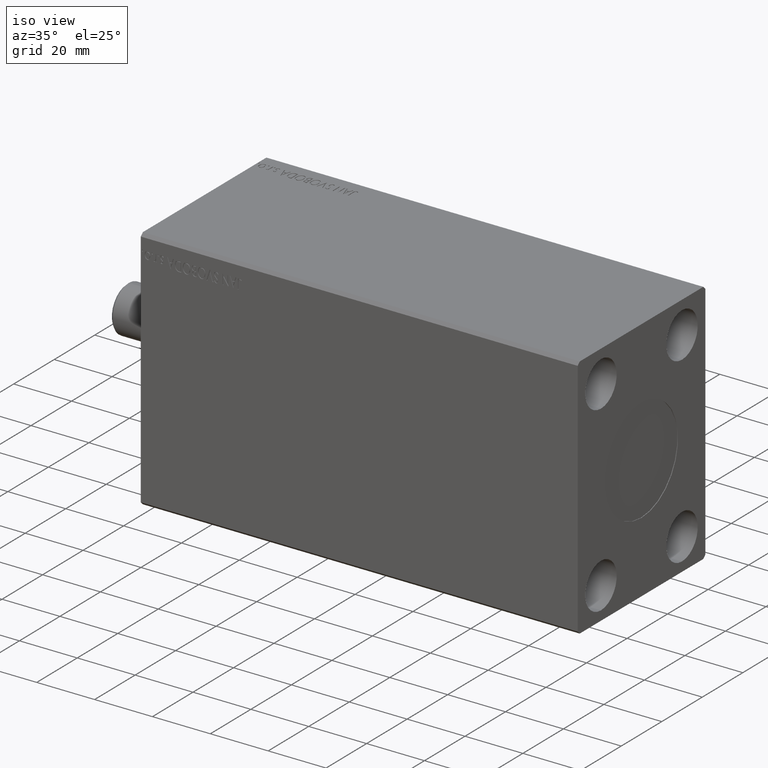
[diagram: clean part render]
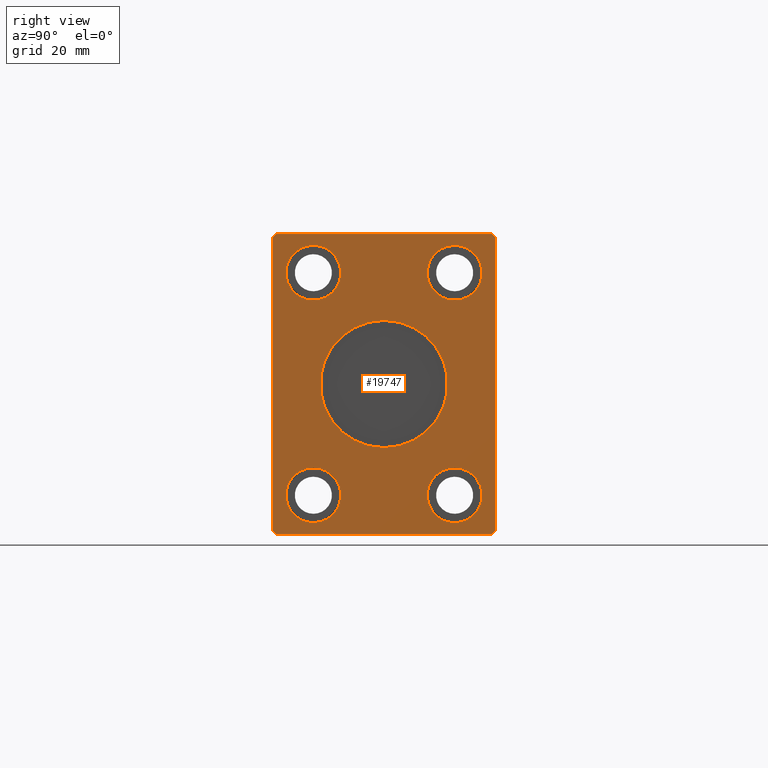
[diagram: tour spotlight — one face highlighted and labeled with its STEP entity id]
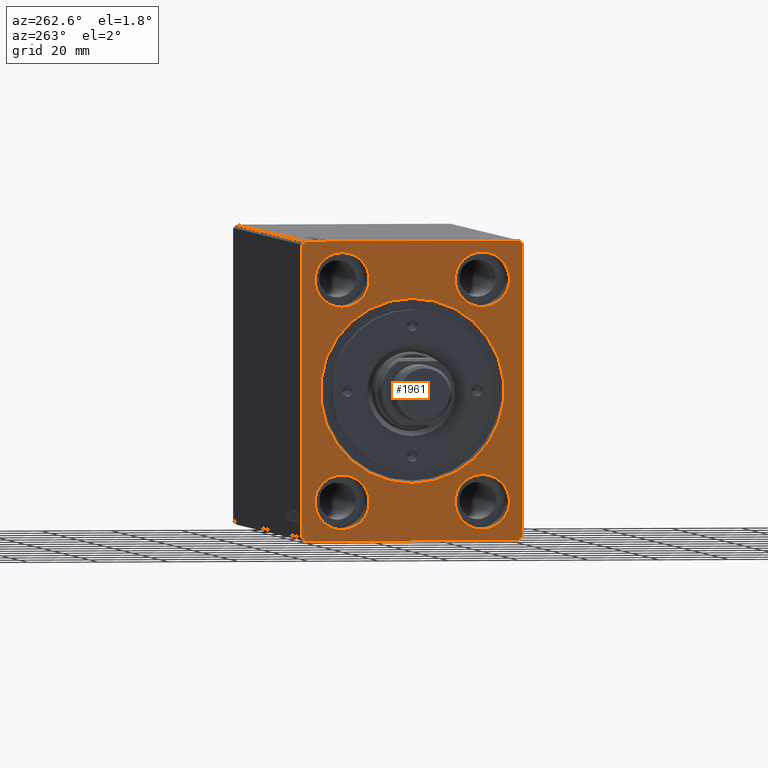
[diagram: tour spotlight — one face highlighted and labeled with its STEP entity id]
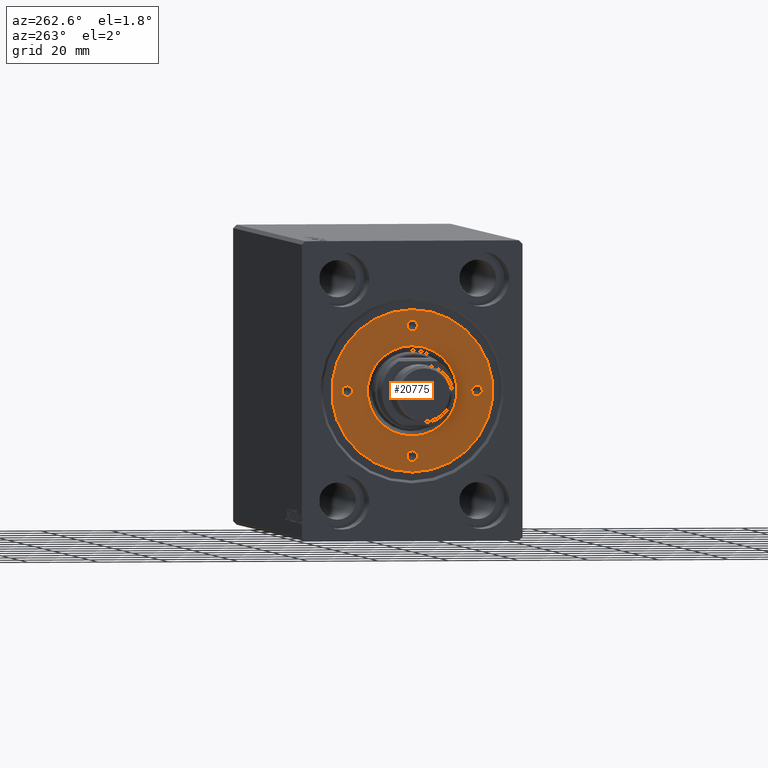
[diagram: tour spotlight — one face highlighted and labeled with its STEP entity id]
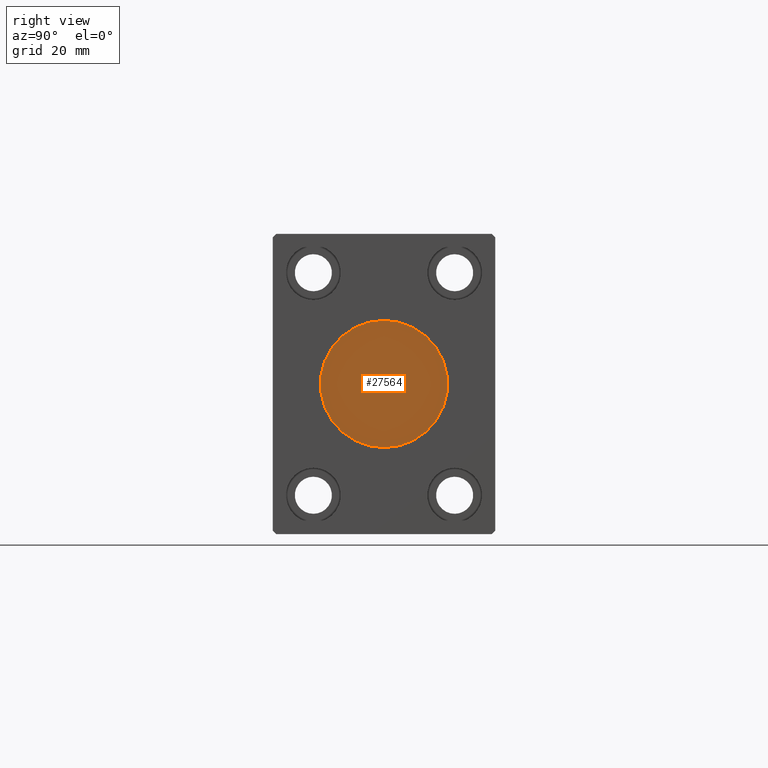
[diagram: tour spotlight — one face highlighted and labeled with its STEP entity id]
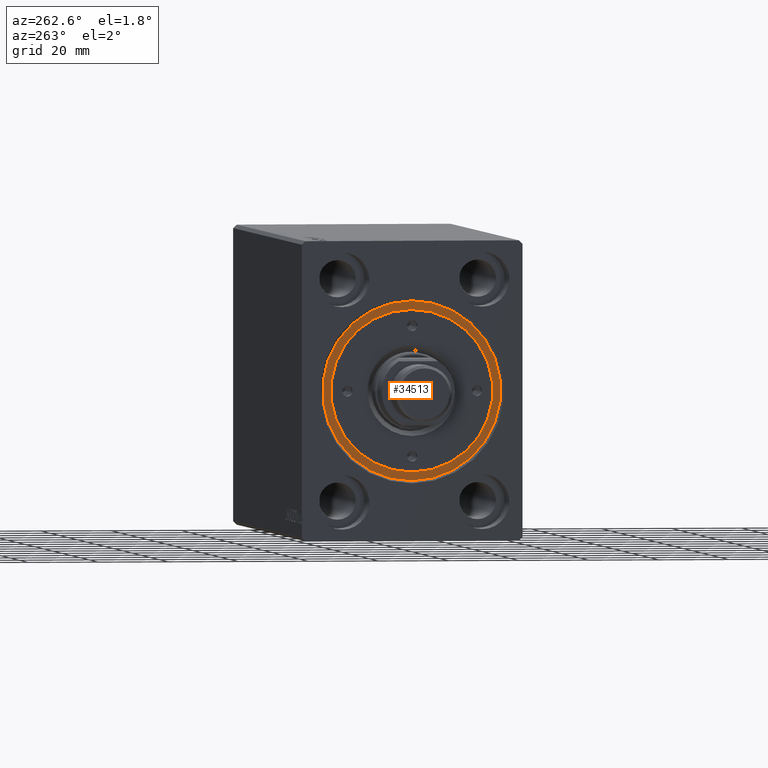
[diagram: tour spotlight — one face highlighted and labeled with its STEP entity id]
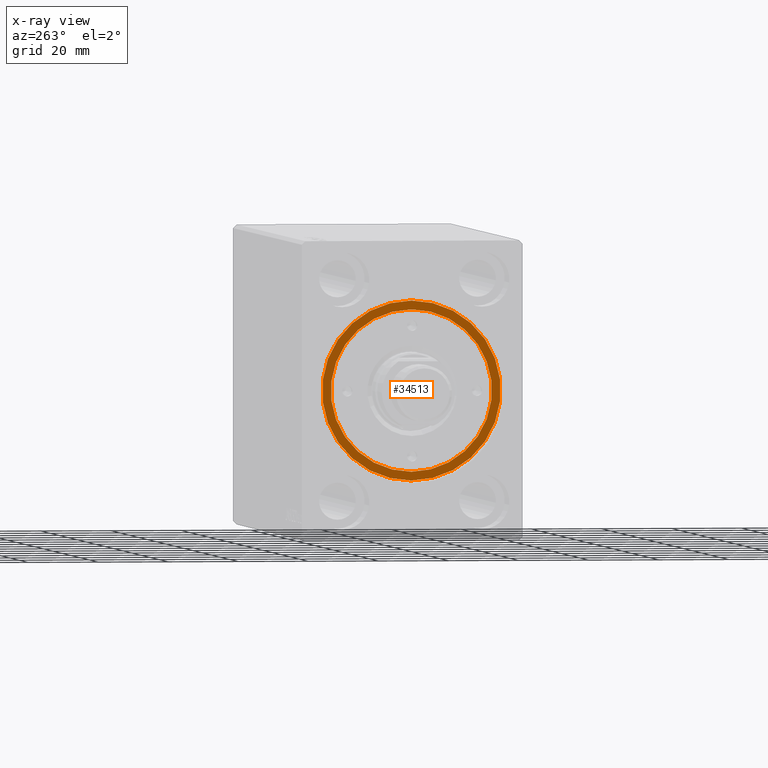
[diagram: x-ray of the same camera — body ghosted, this tour face saturated]
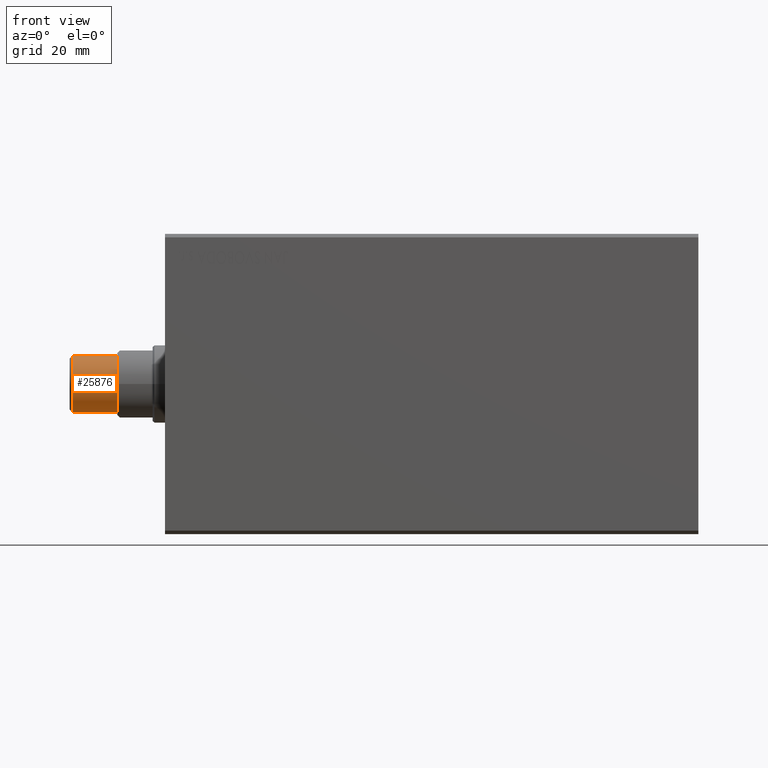
[diagram: tour spotlight — one face highlighted and labeled with its STEP entity id]
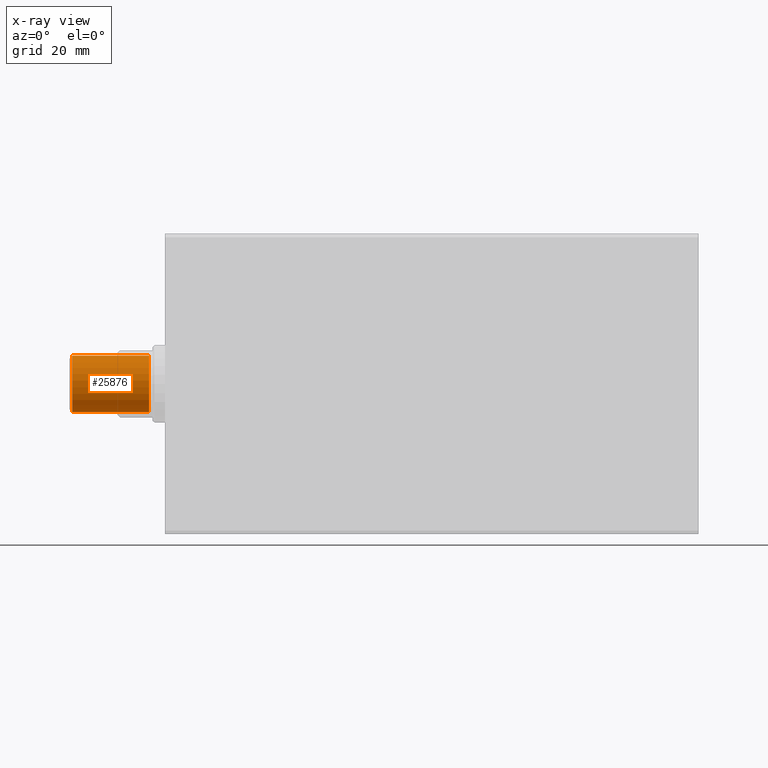
[diagram: x-ray of the same camera — body ghosted, this tour face saturated]
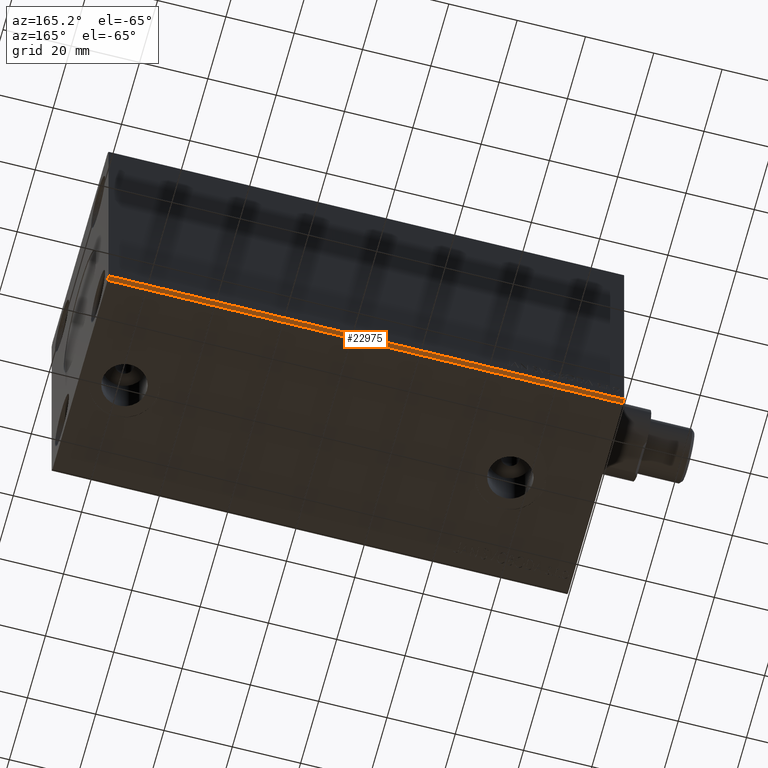
[diagram: tour spotlight — one face highlighted and labeled with its STEP entity id]
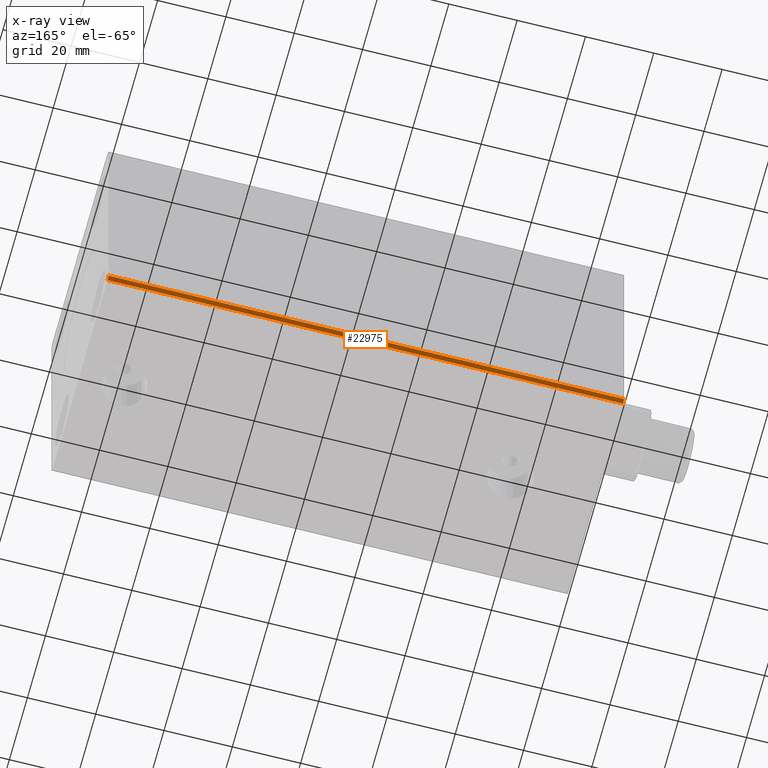
[diagram: x-ray of the same camera — body ghosted, this tour face saturated]
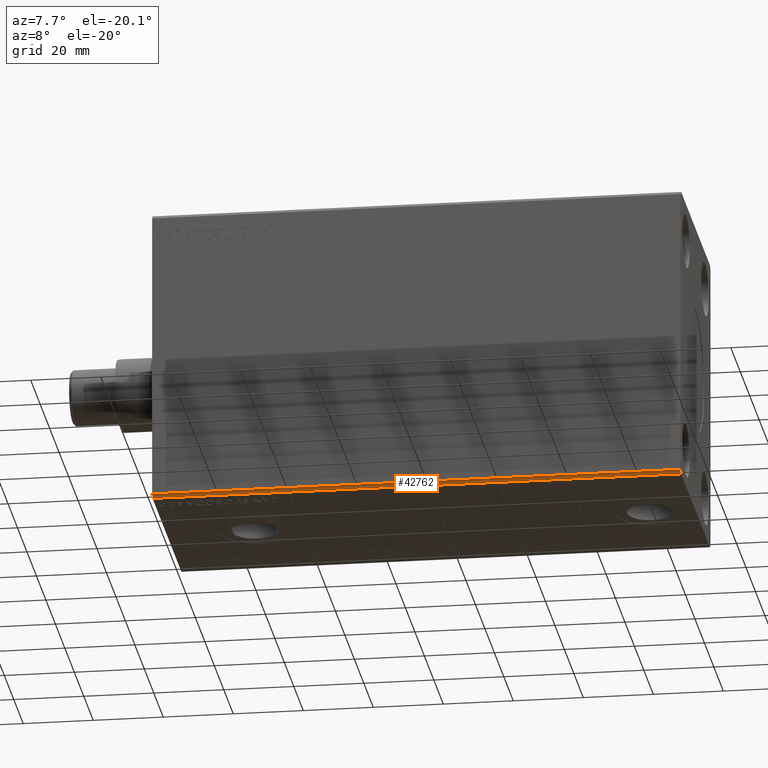
[diagram: tour spotlight — one face highlighted and labeled with its STEP entity id]
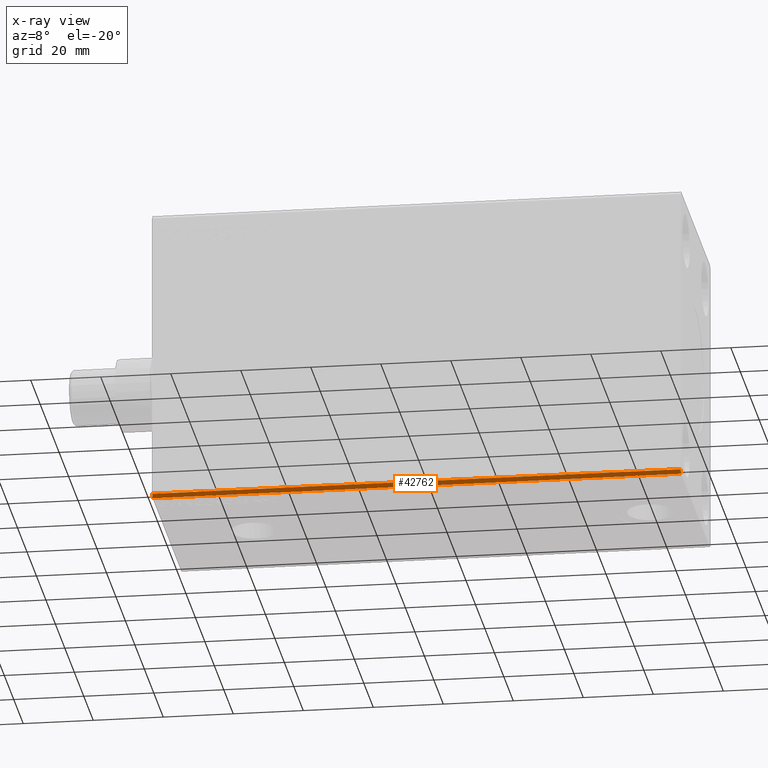
[diagram: x-ray of the same camera — body ghosted, this tour face saturated]
A machine part: a face-by-face anatomy tour. The part has 884 B-rep faces; the first image is the clean iso view, then the 8 largest visible faces are spotlighted one at a time (largest first), each with its STEP entity span.

Face 1 — right view, entity #19747. In plain terms, the highlighted planar face has unit normal (1, 0, 0).
Definition (entity closure, byte-faithful):
#307 = CARTESIAN_POINT ( 'NONE',  ( 151.0000000000000000, -19.99999999999999645, -39.24999999999998579 ) ) ;
#545 = EDGE_LOOP ( 'NONE', ( #42178, #22934 ) ) ;
#1175 = DIRECTION ( 'NONE',  ( -1.000000000000000000, -0.000000000000000000, -0.000000000000000000 ) ) ;
#1454 = VERTEX_POINT ( 'NONE', #42693 ) ;
#2277 = EDGE_CURVE ( 'NONE', #29173, #33342, #12566, .T. ) ;
#3383 = DIRECTION ( 'NONE',  ( 0.000000000000000000, 0.000000000000000000, 1.000000000000000000 ) ) ;
#3436 = AXIS2_PLACEMENT_3D ( 'NONE', #22575, #33822, #26843 ) ;
#4819 = ORIENTED_EDGE ( 'NONE', *, *, #11039, .F. ) ;
#5472 = VERTEX_POINT ( 'NONE', #12970 ) ;
#5478 = DIRECTION ( 'NONE',  ( 0.000000000000000000, -0.7071067811865462405, -0.7071067811865489050 ) ) ;
#5513 = CIRCLE ( 'NONE', #33502, 7.750000000000000000 ) ;
#6202 = VECTOR ( 'NONE', #19805, 1000.000000000000114 ) ;
#6268 = EDGE_CURVE ( 'NONE', #1454, #16040, #36381, .T. ) ;
#6690 = EDGE_CURVE ( 'NONE', #13440, #39242, #5513, .T. ) ;
#7113 = ORIENTED_EDGE ( 'NONE', *, *, #31999, .T. ) ;
#7893 = AXIS2_PLACEMENT_3D ( 'NONE', #40394, #26010, #39514 ) ;
#7985 = VERTEX_POINT ( 'NONE', #16224 ) ;
#8071 = CARTESIAN_POINT ( 'NONE',  ( 151.0000000000000000, -31.50000000000000000, 41.49999999999999289 ) ) ;
#8201 = CARTESIAN_POINT ( 'NONE',  ( 151.0000000000000000, 20.00000000000000355, -23.74999999999998579 ) ) ;
#8781 = VERTEX_POINT ( 'NONE', #32297 ) ;
#8897 = PLANE ( 'NONE',  #7893 ) ;
#9022 = CARTESIAN_POINT ( 'NONE',  ( 151.0000000000000000, 31.50000000000001421, 41.49999999999999289 ) ) ;
#9113 = DIRECTION ( 'NONE',  ( 1.000000000000000000, 0.000000000000000000, 0.000000000000000000 ) ) ;
#10394 = VERTEX_POINT ( 'NONE', #17077 ) ;
#10579 = EDGE_CURVE ( 'NONE', #8781, #7985, #34349, .T. ) ;
#10686 = DIRECTION ( 'NONE',  ( 1.000000000000000000, -0.000000000000000000, -0.000000000000000000 ) ) ;
#10689 = DIRECTION ( 'NONE',  ( 0.000000000000000000, 0.7071067811865462405, 0.7071067811865489050 ) ) ;
#11039 = EDGE_CURVE ( 'NONE', #7985, #8781, #43659, .T. ) ;
#11616 = FACE_OUTER_BOUND ( 'NONE', #11771, .T. ) ;
#11771 = EDGE_LOOP ( 'NONE', ( #23279, #33683, #27114, #23600, #28662, #33434, #15167, #12579 ) ) ;
#12056 = CARTESIAN_POINT ( 'NONE',  ( 151.0000000000000000, -19.99999999999999645, 39.25000000000001421 ) ) ;
#12231 = CARTESIAN_POINT ( 'NONE',  ( 151.0000000000000000, -31.50000000000000000, -41.50000000000000711 ) ) ;
#12566 = CIRCLE ( 'NONE', #37725, 7.750000000000000000 ) ;
#12579 = ORIENTED_EDGE ( 'NONE', *, *, #29443, .T. ) ;
#12727 = EDGE_CURVE ( 'NONE', #42251, #5472, #40171, .T. ) ;
#12874 = EDGE_LOOP ( 'NONE', ( #30965, #20025 ) ) ;
#12970 = CARTESIAN_POINT ( 'NONE',  ( 151.0000000000000000, -19.99999999999999645, 23.75000000000001421 ) ) ;
#13053 = CARTESIAN_POINT ( 'NONE',  ( 151.0000000000000000, -30.50000000000000711, -42.50000000000000711 ) ) ;
#13245 = DIRECTION ( 'NONE',  ( 0.000000000000000000, 0.000000000000000000, -1.000000000000000000 ) ) ;
#13253 = EDGE_CURVE ( 'NONE', #33342, #29173, #32962, .T. ) ;
#13328 = CARTESIAN_POINT ( 'NONE',  ( 151.0000000000000000, -30.50000000000000355, 42.49999999999999289 ) ) ;
#13440 = VERTEX_POINT ( 'NONE', #27121 ) ;
#13499 = AXIS2_PLACEMENT_3D ( 'NONE', #24568, #14214, #38076 ) ;
#13663 = CARTESIAN_POINT ( 'NONE',  ( 151.0000000000000000, 30.50000000000001421, 42.49999999999999289 ) ) ;
#14036 = VERTEX_POINT ( 'NONE', #14799 ) ;
#14214 = DIRECTION ( 'NONE',  ( 1.000000000000000000, 0.000000000000000000, 0.000000000000000000 ) ) ;
#14229 = EDGE_CURVE ( 'NONE', #42639, #41946, #35667, .T. ) ;
#14376 = DIRECTION ( 'NONE',  ( 0.000000000000000000, 0.000000000000000000, 1.000000000000000000 ) ) ;
#14799 = CARTESIAN_POINT ( 'NONE',  ( 151.0000000000000000, -30.50000000000000355, 42.49999999999999289 ) ) ;
#15001 = FACE_BOUND ( 'NONE', #21220, .T. ) ;
#15079 = VECTOR ( 'NONE', #18191, 1000.000000000000000 ) ;
#15167 = ORIENTED_EDGE ( 'NONE', *, *, #23132, .T. ) ;
#15172 = AXIS2_PLACEMENT_3D ( 'NONE', #33500, #33957, #13245 ) ;
#15268 = LINE ( 'NONE', #42702, #15079 ) ;
#15529 = CARTESIAN_POINT ( 'NONE',  ( 151.0000000000000000, 20.00000000000000355, 39.25000000000001421 ) ) ;
#15633 = DIRECTION ( 'NONE',  ( 0.000000000000000000, 0.7071067811865451302, -0.7071067811865500152 ) ) ;
#16040 = VERTEX_POINT ( 'NONE', #8201 ) ;
#16224 = CARTESIAN_POINT ( 'NONE',  ( 151.0000000000000000, 0.000000000000000000, -18.00000000000000000 ) ) ;
#16322 = DIRECTION ( 'NONE',  ( 0.000000000000000000, 0.000000000000000000, -1.000000000000000000 ) ) ;
#16419 = AXIS2_PLACEMENT_3D ( 'NONE', #24744, #38470, #3383 ) ;
#17077 = CARTESIAN_POINT ( 'NONE',  ( 151.0000000000000000, 31.50000000000001421, 41.49999999999999289 ) ) ;
#17274 = VECTOR ( 'NONE', #5478, 999.9999999999998863 ) ;
#18191 = DIRECTION ( 'NONE',  ( 0.000000000000000000, 0.000000000000000000, -1.000000000000000000 ) ) ;
#18621 = VECTOR ( 'NONE', #15633, 1000.000000000000114 ) ;
#19020 = EDGE_CURVE ( 'NONE', #33967, #14036, #44476, .T. ) ;
#19161 = AXIS2_PLACEMENT_3D ( 'NONE', #32445, #1175, #22313 ) ;
#19261 = CIRCLE ( 'NONE', #3436, 7.750000000000000000 ) ;
#19463 = DIRECTION ( 'NONE',  ( 0.000000000000000000, 0.000000000000000000, -1.000000000000000000 ) ) ;
#19642 = LINE ( 'NONE', #13328, #17274 ) ;
#19747 = ADVANCED_FACE ( 'NONE', ( #32531, #15001, #28723, #11616, #25344, #39944 ), #8897, .T. ) ;
#19805 = DIRECTION ( 'NONE',  ( 0.000000000000000000, -0.7071067811865474617, 0.7071067811865474617 ) ) ;
#19833 = EDGE_LOOP ( 'NONE', ( #23950, #7113 ) ) ;
#20025 = ORIENTED_EDGE ( 'NONE', *, *, #40218, .F. ) ;
#20082 = VECTOR ( 'NONE', #22187, 1000.000000000000000 ) ;
#20155 = DIRECTION ( 'NONE',  ( 1.000000000000000000, -0.000000000000000000, -0.000000000000000000 ) ) ;
#20902 = ORIENTED_EDGE ( 'NONE', *, *, #10579, .F. ) ;
#21220 = EDGE_LOOP ( 'NONE', ( #32914, #23609 ) ) ;
#21490 = CARTESIAN_POINT ( 'NONE',  ( 151.0000000000000000, 30.50000000000001776, -42.50000000000000711 ) ) ;
#22187 = DIRECTION ( 'NONE',  ( 0.000000000000000000, -1.000000000000000000, 0.000000000000000000 ) ) ;
#22313 = DIRECTION ( 'NONE',  ( 0.000000000000000000, 0.000000000000000000, 1.000000000000000000 ) ) ;
#22575 = CARTESIAN_POINT ( 'NONE',  ( 151.0000000000000000, 20.00000000000000355, -31.49999999999998579 ) ) ;
#22624 = CARTESIAN_POINT ( 'NONE',  ( 151.0000000000000000, 31.50000000000001421, -41.50000000000000711 ) ) ;
#22682 = EDGE_CURVE ( 'NONE', #10394, #33967, #39852, .T. ) ;
#22934 = ORIENTED_EDGE ( 'NONE', *, *, #13253, .F. ) ;
#23132 = EDGE_CURVE ( 'NONE', #41646, #31641, #38369, .T. ) ;
#23279 = ORIENTED_EDGE ( 'NONE', *, *, #22682, .T. ) ;
#23520 = CARTESIAN_POINT ( 'NONE',  ( 151.0000000000000000, -19.99999999999999645, -31.49999999999998579 ) ) ;
#23600 = ORIENTED_EDGE ( 'NONE', *, *, #37307, .T. ) ;
#23609 = ORIENTED_EDGE ( 'NONE', *, *, #12727, .T. ) ;
#23950 = ORIENTED_EDGE ( 'NONE', *, *, #6268, .T. ) ;
#24568 = CARTESIAN_POINT ( 'NONE',  ( 151.0000000000000000, 0.000000000000000000, 0.000000000000000000 ) ) ;
#24643 = DIRECTION ( 'NONE',  ( 0.000000000000000000, 0.000000000000000000, -1.000000000000000000 ) ) ;
#24744 = CARTESIAN_POINT ( 'NONE',  ( 151.0000000000000000, -19.99999999999999645, 31.50000000000001421 ) ) ;
#25289 = EDGE_LOOP ( 'NONE', ( #4819, #20902 ) ) ;
#25344 = FACE_BOUND ( 'NONE', #545, .T. ) ;
#26010 = DIRECTION ( 'NONE',  ( 1.000000000000000000, 0.000000000000000000, 0.000000000000000000 ) ) ;
#26255 = EDGE_CURVE ( 'NONE', #41946, #41646, #40718, .T. ) ;
#26843 = DIRECTION ( 'NONE',  ( 0.000000000000000000, 0.000000000000000000, 1.000000000000000000 ) ) ;
#26915 = DIRECTION ( 'NONE',  ( 0.000000000000000000, 0.000000000000000000, -1.000000000000000000 ) ) ;
#27114 = ORIENTED_EDGE ( 'NONE', *, *, #43393, .T. ) ;
#27121 = CARTESIAN_POINT ( 'NONE',  ( 151.0000000000000000, 20.00000000000000355, 23.75000000000001421 ) ) ;
#27148 = AXIS2_PLACEMENT_3D ( 'NONE', #42713, #9113, #19463 ) ;
#27367 = DIRECTION ( 'NONE',  ( 1.000000000000000000, -0.000000000000000000, -0.000000000000000000 ) ) ;
#27532 = CARTESIAN_POINT ( 'NONE',  ( 151.0000000000000000, -19.99999999999999645, 31.50000000000001421 ) ) ;
#27868 = LINE ( 'NONE', #31021, #32124 ) ;
#28662 = ORIENTED_EDGE ( 'NONE', *, *, #14229, .T. ) ;
#28723 = FACE_BOUND ( 'NONE', #19833, .T. ) ;
#29173 = VERTEX_POINT ( 'NONE', #307 ) ;
#29443 = EDGE_CURVE ( 'NONE', #31641, #10394, #27868, .T. ) ;
#29990 = EDGE_CURVE ( 'NONE', #5472, #42251, #43607, .T. ) ;
#30308 = CARTESIAN_POINT ( 'NONE',  ( 151.0000000000000000, -30.50000000000000711, -42.50000000000000711 ) ) ;
#30965 = ORIENTED_EDGE ( 'NONE', *, *, #6690, .F. ) ;
#31021 = CARTESIAN_POINT ( 'NONE',  ( 151.0000000000000000, 31.50000000000001421, -41.50000000000000711 ) ) ;
#31641 = VERTEX_POINT ( 'NONE', #22624 ) ;
#31999 = EDGE_CURVE ( 'NONE', #16040, #1454, #19261, .T. ) ;
#32124 = VECTOR ( 'NONE', #14376, 1000.000000000000000 ) ;
#32297 = CARTESIAN_POINT ( 'NONE',  ( 151.0000000000000000, 2.204364238465235428E-15, 18.00000000000000000 ) ) ;
#32445 = CARTESIAN_POINT ( 'NONE',  ( 151.0000000000000000, 20.00000000000000355, -31.49999999999998579 ) ) ;
#32531 = FACE_BOUND ( 'NONE', #25289, .T. ) ;
#32914 = ORIENTED_EDGE ( 'NONE', *, *, #29990, .T. ) ;
#32962 = CIRCLE ( 'NONE', #35843, 7.750000000000000000 ) ;
#33342 = VERTEX_POINT ( 'NONE', #39459 ) ;
#33434 = ORIENTED_EDGE ( 'NONE', *, *, #26255, .T. ) ;
#33467 = CARTESIAN_POINT ( 'NONE',  ( 151.0000000000000000, 30.50000000000001421, 42.49999999999999289 ) ) ;
#33500 = CARTESIAN_POINT ( 'NONE',  ( 151.0000000000000000, 20.00000000000000355, 31.50000000000001421 ) ) ;
#33502 = AXIS2_PLACEMENT_3D ( 'NONE', #41521, #10686, #24643 ) ;
#33515 = DIRECTION ( 'NONE',  ( 0.000000000000000000, 1.000000000000000000, 0.000000000000000000 ) ) ;
#33683 = ORIENTED_EDGE ( 'NONE', *, *, #19020, .T. ) ;
#33822 = DIRECTION ( 'NONE',  ( -1.000000000000000000, -0.000000000000000000, -0.000000000000000000 ) ) ;
#33957 = DIRECTION ( 'NONE',  ( 1.000000000000000000, -0.000000000000000000, -0.000000000000000000 ) ) ;
#33967 = VERTEX_POINT ( 'NONE', #33467 ) ;
#34349 = CIRCLE ( 'NONE', #27148, 18.00000000000000000 ) ;
#35667 = LINE ( 'NONE', #39489, #18621 ) ;
#35843 = AXIS2_PLACEMENT_3D ( 'NONE', #23520, #20155, #16322 ) ;
#36381 = CIRCLE ( 'NONE', #19161, 7.750000000000000000 ) ;
#36617 = CIRCLE ( 'NONE', #15172, 7.750000000000000000 ) ;
#36834 = CARTESIAN_POINT ( 'NONE',  ( 151.0000000000000000, -19.99999999999999645, -31.49999999999998579 ) ) ;
#36997 = DIRECTION ( 'NONE',  ( 0.000000000000000000, 0.000000000000000000, 1.000000000000000000 ) ) ;
#37307 = EDGE_CURVE ( 'NONE', #40378, #42639, #15268, .T. ) ;
#37725 = AXIS2_PLACEMENT_3D ( 'NONE', #36834, #27367, #26915 ) ;
#38076 = DIRECTION ( 'NONE',  ( 0.000000000000000000, 0.000000000000000000, -1.000000000000000000 ) ) ;
#38369 = LINE ( 'NONE', #21490, #39258 ) ;
#38470 = DIRECTION ( 'NONE',  ( -1.000000000000000000, -0.000000000000000000, -0.000000000000000000 ) ) ;
#38486 = VECTOR ( 'NONE', #33515, 1000.000000000000000 ) ;
#38578 = AXIS2_PLACEMENT_3D ( 'NONE', #27532, #41261, #36997 ) ;
#39242 = VERTEX_POINT ( 'NONE', #15529 ) ;
#39258 = VECTOR ( 'NONE', #10689, 999.9999999999998863 ) ;
#39459 = CARTESIAN_POINT ( 'NONE',  ( 151.0000000000000000, -19.99999999999999645, -23.74999999999998579 ) ) ;
#39489 = CARTESIAN_POINT ( 'NONE',  ( 151.0000000000000000, -31.50000000000000000, -41.50000000000000711 ) ) ;
#39514 = DIRECTION ( 'NONE',  ( 0.000000000000000000, 0.000000000000000000, -1.000000000000000000 ) ) ;
#39852 = LINE ( 'NONE', #9022, #6202 ) ;
#39944 = FACE_BOUND ( 'NONE', #12874, .T. ) ;
#40171 = CIRCLE ( 'NONE', #16419, 7.750000000000000000 ) ;
#40218 = EDGE_CURVE ( 'NONE', #39242, #13440, #36617, .T. ) ;
#40378 = VERTEX_POINT ( 'NONE', #8071 ) ;
#40394 = CARTESIAN_POINT ( 'NONE',  ( 151.0000000000000000, 0.000000000000000000, 0.000000000000000000 ) ) ;
#40718 = LINE ( 'NONE', #13053, #38486 ) ;
#41169 = CARTESIAN_POINT ( 'NONE',  ( 151.0000000000000000, 30.50000000000001776, -42.50000000000000711 ) ) ;
#41261 = DIRECTION ( 'NONE',  ( -1.000000000000000000, -0.000000000000000000, -0.000000000000000000 ) ) ;
#41521 = CARTESIAN_POINT ( 'NONE',  ( 151.0000000000000000, 20.00000000000000355, 31.50000000000001421 ) ) ;
#41646 = VERTEX_POINT ( 'NONE', #41169 ) ;
#41946 = VERTEX_POINT ( 'NONE', #30308 ) ;
#42178 = ORIENTED_EDGE ( 'NONE', *, *, #2277, .F. ) ;
#42251 = VERTEX_POINT ( 'NONE', #12056 ) ;
#42639 = VERTEX_POINT ( 'NONE', #12231 ) ;
#42693 = CARTESIAN_POINT ( 'NONE',  ( 151.0000000000000000, 20.00000000000000355, -39.24999999999998579 ) ) ;
#42702 = CARTESIAN_POINT ( 'NONE',  ( 151.0000000000000000, -31.50000000000000000, 41.49999999999999289 ) ) ;
#42713 = CARTESIAN_POINT ( 'NONE',  ( 151.0000000000000000, 0.000000000000000000, 0.000000000000000000 ) ) ;
#43393 = EDGE_CURVE ( 'NONE', #14036, #40378, #19642, .T. ) ;
#43607 = CIRCLE ( 'NONE', #38578, 7.750000000000000000 ) ;
#43659 = CIRCLE ( 'NONE', #13499, 18.00000000000000000 ) ;
#44476 = LINE ( 'NONE', #13663, #20082 ) ;

Face 2 — auxiliary view, entity #1961. In plain terms, the highlighted planar face has unit normal (1, 0, 0).
Definition (entity closure, byte-faithful):
#18 = CARTESIAN_POINT ( 'NONE',  ( 0.000000000000000000, 30.50000000000001776, -42.50000000000000711 ) ) ;
#594 = LINE ( 'NONE', #14318, #18474 ) ;
#1258 = DIRECTION ( 'NONE',  ( 0.000000000000000000, 1.000000000000000000, 0.000000000000000000 ) ) ;
#1271 = EDGE_CURVE ( 'NONE', #6618, #31194, #24621, .T. ) ;
#1553 = VERTEX_POINT ( 'NONE', #23532 ) ;
#1961 = ADVANCED_FACE ( 'NONE', ( #11487, #8117, #21834, #11041, #24764, #7669 ), #31746, .F. ) ;
#2382 = VERTEX_POINT ( 'NONE', #11152 ) ;
#2415 = DIRECTION ( 'NONE',  ( 0.000000000000000000, -0.7071067811865462405, -0.7071067811865489050 ) ) ;
#2604 = CARTESIAN_POINT ( 'NONE',  ( 0.000000000000000000, -19.99999999999999645, 31.50000000000001421 ) ) ;
#2616 = CIRCLE ( 'NONE', #44297, 7.750000000000000000 ) ;
#2662 = DIRECTION ( 'NONE',  ( 0.000000000000000000, 0.000000000000000000, 1.000000000000000000 ) ) ;
#3050 = LINE ( 'NONE', #9360, #5736 ) ;
#3592 = CIRCLE ( 'NONE', #18689, 7.750000000000000000 ) ;
#3769 = EDGE_LOOP ( 'NONE', ( #9540, #4269 ) ) ;
#3835 = CARTESIAN_POINT ( 'NONE',  ( 0.000000000000000000, -30.50000000000000355, 42.49999999999999289 ) ) ;
#3890 = ORIENTED_EDGE ( 'NONE', *, *, #21594, .F. ) ;
#3933 = ORIENTED_EDGE ( 'NONE', *, *, #6531, .T. ) ;
#4269 = ORIENTED_EDGE ( 'NONE', *, *, #28581, .T. ) ;
#4376 = CARTESIAN_POINT ( 'NONE',  ( 0.000000000000000000, 31.50000000000001421, 41.49999999999999289 ) ) ;
#4449 = VERTEX_POINT ( 'NONE', #18 ) ;
#4739 = DIRECTION ( 'NONE',  ( 1.000000000000000000, 0.000000000000000000, 0.000000000000000000 ) ) ;
#5571 = CIRCLE ( 'NONE', #39337, 7.750000000000000000 ) ;
#5736 = VECTOR ( 'NONE', #6203, 1000.000000000000000 ) ;
#5937 = EDGE_CURVE ( 'NONE', #43869, #6297, #22992, .T. ) ;
#6203 = DIRECTION ( 'NONE',  ( 0.000000000000000000, -1.000000000000000000, 0.000000000000000000 ) ) ;
#6297 = VERTEX_POINT ( 'NONE', #41913 ) ;
#6531 = EDGE_CURVE ( 'NONE', #36466, #2382, #2616, .T. ) ;
#6618 = VERTEX_POINT ( 'NONE', #40410 ) ;
#6941 = ORIENTED_EDGE ( 'NONE', *, *, #33157, .T. ) ;
#7103 = CIRCLE ( 'NONE', #20738, 26.20000000000002771 ) ;
#7107 = CARTESIAN_POINT ( 'NONE',  ( 0.000000000000000000, 31.50000000000001421, -41.50000000000000711 ) ) ;
#7292 = DIRECTION ( 'NONE',  ( 1.000000000000000000, -0.000000000000000000, -0.000000000000000000 ) ) ;
#7466 = ORIENTED_EDGE ( 'NONE', *, *, #15786, .F. ) ;
#7578 = ORIENTED_EDGE ( 'NONE', *, *, #8919, .T. ) ;
#7669 = FACE_BOUND ( 'NONE', #8182, .T. ) ;
#8117 = FACE_BOUND ( 'NONE', #25718, .T. ) ;
#8182 = EDGE_LOOP ( 'NONE', ( #30033, #7578 ) ) ;
#8501 = CARTESIAN_POINT ( 'NONE',  ( 0.000000000000000000, 30.50000000000001776, -42.50000000000000711 ) ) ;
#8562 = CIRCLE ( 'NONE', #12150, 7.750000000000000000 ) ;
#8919 = EDGE_CURVE ( 'NONE', #15089, #39497, #5571, .T. ) ;
#9271 = DIRECTION ( 'NONE',  ( 0.000000000000000000, 0.7071067811865451302, -0.7071067811865500152 ) ) ;
#9360 = CARTESIAN_POINT ( 'NONE',  ( 0.000000000000000000, 30.50000000000001421, 42.49999999999999289 ) ) ;
#9540 = ORIENTED_EDGE ( 'NONE', *, *, #34731, .T. ) ;
#9579 = DIRECTION ( 'NONE',  ( 0.000000000000000000, 0.000000000000000000, 1.000000000000000000 ) ) ;
#9635 = CARTESIAN_POINT ( 'NONE',  ( 0.000000000000000000, 20.00000000000000355, -31.49999999999998579 ) ) ;
#9638 = ORIENTED_EDGE ( 'NONE', *, *, #15879, .F. ) ;
#9705 = ORIENTED_EDGE ( 'NONE', *, *, #24893, .F. ) ;
#10811 = DIRECTION ( 'NONE',  ( -1.000000000000000000, 0.000000000000000000, 0.000000000000000000 ) ) ;
#11041 = FACE_OUTER_BOUND ( 'NONE', #32885, .T. ) ;
#11152 = CARTESIAN_POINT ( 'NONE',  ( 0.000000000000000000, -19.99999999999999645, -23.74999999999998579 ) ) ;
#11248 = AXIS2_PLACEMENT_3D ( 'NONE', #28687, #15850, #21716 ) ;
#11487 = FACE_BOUND ( 'NONE', #38777, .T. ) ;
#11502 = DIRECTION ( 'NONE',  ( -1.000000000000000000, 0.000000000000000000, 0.000000000000000000 ) ) ;
#11693 = DIRECTION ( 'NONE',  ( 1.000000000000000000, 0.000000000000000000, 0.000000000000000000 ) ) ;
#12132 = DIRECTION ( 'NONE',  ( 0.000000000000000000, 0.000000000000000000, -1.000000000000000000 ) ) ;
#12150 = AXIS2_PLACEMENT_3D ( 'NONE', #38935, #10811, #31735 ) ;
#12651 = VERTEX_POINT ( 'NONE', #3835 ) ;
#12785 = CARTESIAN_POINT ( 'NONE',  ( 0.000000000000000000, -31.50000000000000000, -41.50000000000000711 ) ) ;
#12938 = DIRECTION ( 'NONE',  ( 1.000000000000000000, -0.000000000000000000, -0.000000000000000000 ) ) ;
#13837 = CARTESIAN_POINT ( 'NONE',  ( 0.000000000000000000, -19.99999999999999645, 23.75000000000001421 ) ) ;
#14154 = LINE ( 'NONE', #27881, #18618 ) ;
#14190 = VERTEX_POINT ( 'NONE', #7107 ) ;
#14316 = CARTESIAN_POINT ( 'NONE',  ( 0.000000000000000000, 20.00000000000000355, 39.25000000000001421 ) ) ;
#14318 = CARTESIAN_POINT ( 'NONE',  ( 0.000000000000000000, -30.50000000000000711, -42.50000000000000711 ) ) ;
#14780 = AXIS2_PLACEMENT_3D ( 'NONE', #32634, #11502, #35799 ) ;
#14942 = VERTEX_POINT ( 'NONE', #30990 ) ;
#15089 = VERTEX_POINT ( 'NONE', #39739 ) ;
#15143 = ORIENTED_EDGE ( 'NONE', *, *, #29808, .F. ) ;
#15786 = EDGE_CURVE ( 'NONE', #31194, #12651, #3050, .T. ) ;
#15850 = DIRECTION ( 'NONE',  ( 1.000000000000000000, -0.000000000000000000, -0.000000000000000000 ) ) ;
#15879 = EDGE_CURVE ( 'NONE', #31847, #34017, #3592, .T. ) ;
#15975 = ORIENTED_EDGE ( 'NONE', *, *, #25341, .F. ) ;
#16005 = ORIENTED_EDGE ( 'NONE', *, *, #38287, .F. ) ;
#17170 = VERTEX_POINT ( 'NONE', #17745 ) ;
#17281 = ORIENTED_EDGE ( 'NONE', *, *, #1271, .F. ) ;
#17288 = CARTESIAN_POINT ( 'NONE',  ( 0.000000000000000000, 0.000000000000000000, 0.000000000000000000 ) ) ;
#17573 = EDGE_CURVE ( 'NONE', #14190, #6618, #40387, .T. ) ;
#17745 = CARTESIAN_POINT ( 'NONE',  ( 0.000000000000000000, 20.00000000000000355, -23.74999999999998579 ) ) ;
#17913 = EDGE_CURVE ( 'NONE', #41209, #43869, #14154, .T. ) ;
#18474 = VECTOR ( 'NONE', #1258, 1000.000000000000000 ) ;
#18618 = VECTOR ( 'NONE', #41612, 1000.000000000000000 ) ;
#18628 = DIRECTION ( 'NONE',  ( 0.000000000000000000, 0.7071067811865462405, 0.7071067811865489050 ) ) ;
#18689 = AXIS2_PLACEMENT_3D ( 'NONE', #2604, #30271, #9579 ) ;
#18751 = EDGE_LOOP ( 'NONE', ( #6941, #3933 ) ) ;
#18919 = VERTEX_POINT ( 'NONE', #39401 ) ;
#19442 = CIRCLE ( 'NONE', #43157, 7.750000000000000000 ) ;
#20644 = DIRECTION ( 'NONE',  ( -1.000000000000000000, 0.000000000000000000, 0.000000000000000000 ) ) ;
#20738 = AXIS2_PLACEMENT_3D ( 'NONE', #36003, #11693, #12132 ) ;
#21594 = EDGE_CURVE ( 'NONE', #14942, #17170, #19442, .T. ) ;
#21716 = DIRECTION ( 'NONE',  ( 0.000000000000000000, 0.000000000000000000, -1.000000000000000000 ) ) ;
#21834 = FACE_BOUND ( 'NONE', #3769, .T. ) ;
#21842 = ORIENTED_EDGE ( 'NONE', *, *, #5937, .F. ) ;
#22222 = LINE ( 'NONE', #8501, #40727 ) ;
#22265 = EDGE_CURVE ( 'NONE', #34017, #31847, #8562, .T. ) ;
#22496 = DIRECTION ( 'NONE',  ( 0.000000000000000000, 0.000000000000000000, -1.000000000000000000 ) ) ;
#22662 = CARTESIAN_POINT ( 'NONE',  ( 0.000000000000000000, -30.50000000000000355, 42.49999999999999289 ) ) ;
#22729 = CIRCLE ( 'NONE', #34237, 26.20000000000002771 ) ;
#22992 = LINE ( 'NONE', #43254, #33470 ) ;
#23298 = EDGE_CURVE ( 'NONE', #39497, #15089, #39960, .T. ) ;
#23319 = LINE ( 'NONE', #22662, #25894 ) ;
#23532 = CARTESIAN_POINT ( 'NONE',  ( 0.000000000000000000, 0.000000000000000000, 26.20000000000002771 ) ) ;
#23733 = ORIENTED_EDGE ( 'NONE', *, *, #17573, .F. ) ;
#24621 = LINE ( 'NONE', #4376, #37696 ) ;
#24764 = FACE_BOUND ( 'NONE', #18751, .T. ) ;
#24822 = DIRECTION ( 'NONE',  ( 0.000000000000000000, 0.000000000000000000, -1.000000000000000000 ) ) ;
#24893 = EDGE_CURVE ( 'NONE', #4449, #14190, #22222, .T. ) ;
#25341 = EDGE_CURVE ( 'NONE', #17170, #14942, #29864, .T. ) ;
#25718 = EDGE_LOOP ( 'NONE', ( #15975, #3890 ) ) ;
#25768 = CIRCLE ( 'NONE', #35120, 7.750000000000000000 ) ;
#25894 = VECTOR ( 'NONE', #2415, 999.9999999999998863 ) ;
#26508 = VECTOR ( 'NONE', #43969, 1000.000000000000000 ) ;
#26670 = DIRECTION ( 'NONE',  ( 0.000000000000000000, 0.000000000000000000, -1.000000000000000000 ) ) ;
#27185 = DIRECTION ( 'NONE',  ( 0.000000000000000000, 0.000000000000000000, -1.000000000000000000 ) ) ;
#27881 = CARTESIAN_POINT ( 'NONE',  ( 0.000000000000000000, -31.50000000000000000, 41.49999999999999289 ) ) ;
#27997 = DIRECTION ( 'NONE',  ( 0.000000000000000000, -0.7071067811865474617, 0.7071067811865474617 ) ) ;
#28581 = EDGE_CURVE ( 'NONE', #18919, #1553, #22729, .T. ) ;
#28687 = CARTESIAN_POINT ( 'NONE',  ( 0.000000000000000000, 20.00000000000000355, 31.50000000000001421 ) ) ;
#28828 = ORIENTED_EDGE ( 'NONE', *, *, #17913, .F. ) ;
#29808 = EDGE_CURVE ( 'NONE', #6297, #4449, #594, .T. ) ;
#29847 = CARTESIAN_POINT ( 'NONE',  ( 0.000000000000000000, -19.99999999999999645, -39.24999999999998579 ) ) ;
#29864 = CIRCLE ( 'NONE', #14780, 7.750000000000000000 ) ;
#30031 = CARTESIAN_POINT ( 'NONE',  ( 0.000000000000000000, -19.99999999999999645, -31.49999999999998579 ) ) ;
#30033 = ORIENTED_EDGE ( 'NONE', *, *, #23298, .T. ) ;
#30271 = DIRECTION ( 'NONE',  ( -1.000000000000000000, 0.000000000000000000, 0.000000000000000000 ) ) ;
#30709 = DIRECTION ( 'NONE',  ( 1.000000000000000000, -0.000000000000000000, -0.000000000000000000 ) ) ;
#30990 = CARTESIAN_POINT ( 'NONE',  ( 0.000000000000000000, 20.00000000000000355, -39.24999999999998579 ) ) ;
#31194 = VERTEX_POINT ( 'NONE', #38465 ) ;
#31351 = CARTESIAN_POINT ( 'NONE',  ( 0.000000000000000000, 20.00000000000000355, 31.50000000000001421 ) ) ;
#31735 = DIRECTION ( 'NONE',  ( 0.000000000000000000, 0.000000000000000000, 1.000000000000000000 ) ) ;
#31746 = PLANE ( 'NONE',  #43467 ) ;
#31847 = VERTEX_POINT ( 'NONE', #13837 ) ;
#32634 = CARTESIAN_POINT ( 'NONE',  ( 0.000000000000000000, 20.00000000000000355, -31.49999999999998579 ) ) ;
#32885 = EDGE_LOOP ( 'NONE', ( #17281, #23733, #9705, #15143, #21842, #28828, #16005, #7466 ) ) ;
#33157 = EDGE_CURVE ( 'NONE', #2382, #36466, #25768, .T. ) ;
#33390 = CARTESIAN_POINT ( 'NONE',  ( 0.000000000000000000, 31.50000000000001421, -41.50000000000000711 ) ) ;
#33470 = VECTOR ( 'NONE', #9271, 1000.000000000000114 ) ;
#34017 = VERTEX_POINT ( 'NONE', #43602 ) ;
#34092 = CARTESIAN_POINT ( 'NONE',  ( 0.000000000000000000, -19.99999999999999645, -31.49999999999998579 ) ) ;
#34237 = AXIS2_PLACEMENT_3D ( 'NONE', #17288, #38218, #27185 ) ;
#34731 = EDGE_CURVE ( 'NONE', #1553, #18919, #7103, .T. ) ;
#35120 = AXIS2_PLACEMENT_3D ( 'NONE', #30031, #12938, #26670 ) ;
#35560 = CARTESIAN_POINT ( 'NONE',  ( 0.000000000000000000, 0.000000000000000000, 0.000000000000000000 ) ) ;
#35799 = DIRECTION ( 'NONE',  ( 0.000000000000000000, 0.000000000000000000, 1.000000000000000000 ) ) ;
#36003 = CARTESIAN_POINT ( 'NONE',  ( 0.000000000000000000, 0.000000000000000000, 0.000000000000000000 ) ) ;
#36466 = VERTEX_POINT ( 'NONE', #29847 ) ;
#37696 = VECTOR ( 'NONE', #27997, 1000.000000000000114 ) ;
#38218 = DIRECTION ( 'NONE',  ( 1.000000000000000000, 0.000000000000000000, 0.000000000000000000 ) ) ;
#38287 = EDGE_CURVE ( 'NONE', #12651, #41209, #23319, .T. ) ;
#38465 = CARTESIAN_POINT ( 'NONE',  ( 0.000000000000000000, 30.50000000000001421, 42.49999999999999289 ) ) ;
#38777 = EDGE_LOOP ( 'NONE', ( #41177, #9638 ) ) ;
#38935 = CARTESIAN_POINT ( 'NONE',  ( 0.000000000000000000, -19.99999999999999645, 31.50000000000001421 ) ) ;
#39337 = AXIS2_PLACEMENT_3D ( 'NONE', #31351, #7292, #24822 ) ;
#39401 = CARTESIAN_POINT ( 'NONE',  ( 0.000000000000000000, 3.208574613766068455E-15, -26.20000000000002771 ) ) ;
#39497 = VERTEX_POINT ( 'NONE', #14316 ) ;
#39739 = CARTESIAN_POINT ( 'NONE',  ( 0.000000000000000000, 20.00000000000000355, 23.75000000000001421 ) ) ;
#39960 = CIRCLE ( 'NONE', #11248, 7.750000000000000000 ) ;
#40387 = LINE ( 'NONE', #33390, #26508 ) ;
#40410 = CARTESIAN_POINT ( 'NONE',  ( 0.000000000000000000, 31.50000000000001421, 41.49999999999999289 ) ) ;
#40493 = CARTESIAN_POINT ( 'NONE',  ( 0.000000000000000000, -31.50000000000000000, 41.49999999999999289 ) ) ;
#40727 = VECTOR ( 'NONE', #18628, 999.9999999999998863 ) ;
#41177 = ORIENTED_EDGE ( 'NONE', *, *, #22265, .F. ) ;
#41209 = VERTEX_POINT ( 'NONE', #40493 ) ;
#41612 = DIRECTION ( 'NONE',  ( 0.000000000000000000, 0.000000000000000000, -1.000000000000000000 ) ) ;
#41913 = CARTESIAN_POINT ( 'NONE',  ( 0.000000000000000000, -30.50000000000000711, -42.50000000000000711 ) ) ;
#43157 = AXIS2_PLACEMENT_3D ( 'NONE', #9635, #20644, #2662 ) ;
#43254 = CARTESIAN_POINT ( 'NONE',  ( 0.000000000000000000, -31.50000000000000000, -41.50000000000000711 ) ) ;
#43467 = AXIS2_PLACEMENT_3D ( 'NONE', #35560, #4739, #22496 ) ;
#43551 = DIRECTION ( 'NONE',  ( 0.000000000000000000, 0.000000000000000000, -1.000000000000000000 ) ) ;
#43602 = CARTESIAN_POINT ( 'NONE',  ( 0.000000000000000000, -19.99999999999999645, 39.25000000000001421 ) ) ;
#43869 = VERTEX_POINT ( 'NONE', #12785 ) ;
#43969 = DIRECTION ( 'NONE',  ( 0.000000000000000000, 0.000000000000000000, 1.000000000000000000 ) ) ;
#44297 = AXIS2_PLACEMENT_3D ( 'NONE', #34092, #30709, #43551 ) ;

Face 3 — auxiliary view, entity #20775. In plain terms, the highlighted planar face has unit normal (-1, 0, 0).
Definition (entity closure, byte-faithful):
#142 = ORIENTED_EDGE ( 'NONE', *, *, #15571, .F. ) ;
#239 = DIRECTION ( 'NONE',  ( -0.000000000000000000, -0.000000000000000000, 1.000000000000000000 ) ) ;
#309 = EDGE_LOOP ( 'NONE', ( #19776, #16709 ) ) ;
#310 = EDGE_LOOP ( 'NONE', ( #2353, #10328 ) ) ;
#837 = EDGE_LOOP ( 'NONE', ( #8995, #142 ) ) ;
#2112 = VERTEX_POINT ( 'NONE', #24715 ) ;
#2353 = ORIENTED_EDGE ( 'NONE', *, *, #39264, .F. ) ;
#2880 = CARTESIAN_POINT ( 'NONE',  ( 0.000000000000000000, 0.000000000000000000, 11.79999999999999893 ) ) ;
#3103 = DIRECTION ( 'NONE',  ( -0.000000000000000000, -0.000000000000000000, 1.000000000000000000 ) ) ;
#3321 = PLANE ( 'NONE',  #15095 ) ;
#3832 = DIRECTION ( 'NONE',  ( 0.000000000000000000, 0.000000000000000000, 1.000000000000000000 ) ) ;
#4048 = CARTESIAN_POINT ( 'NONE',  ( 0.000000000000000000, 0.000000000000000000, 11.79999999999999893 ) ) ;
#4860 = AXIS2_PLACEMENT_3D ( 'NONE', #4048, #21368, #17767 ) ;
#5716 = CIRCLE ( 'NONE', #17922, 1.499999999999996891 ) ;
#6396 = CARTESIAN_POINT ( 'NONE',  ( -18.50000000000000000, 0.000000000000000000, 11.79999999999999893 ) ) ;
#6547 = DIRECTION ( 'NONE',  ( 1.000000000000000000, 0.000000000000000000, 0.000000000000000000 ) ) ;
#7208 = VERTEX_POINT ( 'NONE', #27678 ) ;
#7848 = ORIENTED_EDGE ( 'NONE', *, *, #33859, .T. ) ;
#8995 = ORIENTED_EDGE ( 'NONE', *, *, #30101, .F. ) ;
#9058 = VERTEX_POINT ( 'NONE', #19175 ) ;
#9296 = AXIS2_PLACEMENT_3D ( 'NONE', #14722, #17872, #24845 ) ;
#10080 = CARTESIAN_POINT ( 'NONE',  ( -18.50000000000000000, 0.000000000000000000, 11.79999999999999893 ) ) ;
#10328 = ORIENTED_EDGE ( 'NONE', *, *, #20910, .F. ) ;
#10510 = DIRECTION ( 'NONE',  ( -0.000000000000000000, -0.000000000000000000, 1.000000000000000000 ) ) ;
#10780 = CARTESIAN_POINT ( 'NONE',  ( 1.499999999999996891, -18.50000000000000000, 11.79999999999999893 ) ) ;
#11370 = ORIENTED_EDGE ( 'NONE', *, *, #31282, .T. ) ;
#11689 = DIRECTION ( 'NONE',  ( -0.000000000000000000, -0.000000000000000000, 1.000000000000000000 ) ) ;
#12779 = EDGE_CURVE ( 'NONE', #2112, #34065, #20021, .T. ) ;
#13295 = CARTESIAN_POINT ( 'NONE',  ( -1.499999999999996891, -18.50000000000000000, 11.79999999999999893 ) ) ;
#13403 = CARTESIAN_POINT ( 'NONE',  ( 23.00000000000000000, 2.816687638038912352E-15, 11.79999999999999893 ) ) ;
#13612 = EDGE_CURVE ( 'NONE', #34065, #2112, #40909, .T. ) ;
#13643 = CARTESIAN_POINT ( 'NONE',  ( -17.00000000000000000, 0.000000000000000000, 11.79999999999999893 ) ) ;
#14288 = ORIENTED_EDGE ( 'NONE', *, *, #44057, .T. ) ;
#14409 = CARTESIAN_POINT ( 'NONE',  ( 0.000000000000000000, 0.000000000000000000, 11.79999999999999893 ) ) ;
#14722 = CARTESIAN_POINT ( 'NONE',  ( 0.000000000000000000, 0.000000000000000000, 11.79999999999999893 ) ) ;
#14881 = CIRCLE ( 'NONE', #35728, 1.499999999999997780 ) ;
#14967 = DIRECTION ( 'NONE',  ( -0.000000000000000000, -0.000000000000000000, -1.000000000000000000 ) ) ;
#15095 = AXIS2_PLACEMENT_3D ( 'NONE', #2880, #17039, #30320 ) ;
#15099 = DIRECTION ( 'NONE',  ( -0.000000000000000000, -0.000000000000000000, 1.000000000000000000 ) ) ;
#15571 = EDGE_CURVE ( 'NONE', #41171, #29697, #37340, .T. ) ;
#15797 = AXIS2_PLACEMENT_3D ( 'NONE', #10080, #3103, #24013 ) ;
#15801 = DIRECTION ( 'NONE',  ( -0.000000000000000000, -0.000000000000000000, 1.000000000000000000 ) ) ;
#16709 = ORIENTED_EDGE ( 'NONE', *, *, #35871, .F. ) ;
#17039 = DIRECTION ( 'NONE',  ( 0.000000000000000000, 0.000000000000000000, 1.000000000000000000 ) ) ;
#17323 = DIRECTION ( 'NONE',  ( 1.000000000000000000, 0.000000000000000000, 0.000000000000000000 ) ) ;
#17334 = CARTESIAN_POINT ( 'NONE',  ( 0.000000000000000000, 18.50000000000000000, 11.79999999999999893 ) ) ;
#17767 = DIRECTION ( 'NONE',  ( 1.000000000000000000, 0.000000000000000000, 0.000000000000000000 ) ) ;
#17872 = DIRECTION ( 'NONE',  ( -0.000000000000000000, -0.000000000000000000, -1.000000000000000000 ) ) ;
#17922 = AXIS2_PLACEMENT_3D ( 'NONE', #40093, #15801, #30391 ) ;
#18195 = ORIENTED_EDGE ( 'NONE', *, *, #19508, .T. ) ;
#18331 = DIRECTION ( 'NONE',  ( 1.000000000000000000, 0.000000000000000000, 0.000000000000000000 ) ) ;
#18568 = CIRCLE ( 'NONE', #24313, 23.00000000000000000 ) ;
#18660 = FACE_BOUND ( 'NONE', #32429, .T. ) ;
#19175 = CARTESIAN_POINT ( 'NONE',  ( 1.499999999999996891, 18.50000000000000000, 11.79999999999999893 ) ) ;
#19508 = EDGE_CURVE ( 'NONE', #7208, #31493, #28705, .T. ) ;
#19776 = ORIENTED_EDGE ( 'NONE', *, *, #30224, .F. ) ;
#20021 = CIRCLE ( 'NONE', #32239, 1.499999999999997780 ) ;
#20118 = DIRECTION ( 'NONE',  ( -0.000000000000000000, -0.000000000000000000, 1.000000000000000000 ) ) ;
#20414 = CARTESIAN_POINT ( 'NONE',  ( 17.00000000000000000, 1.836970198721027222E-16, 11.79999999999999893 ) ) ;
#20775 = ADVANCED_FACE ( 'NONE', ( #22030, #35763, #18660, #32391, #22252, #37530 ), #3321, .T. ) ;
#20866 = CARTESIAN_POINT ( 'NONE',  ( -12.79999999999997407, 1.567547902908609029E-15, 11.79999999999999893 ) ) ;
#20910 = EDGE_CURVE ( 'NONE', #36731, #25469, #38085, .T. ) ;
#21368 = DIRECTION ( 'NONE',  ( 0.000000000000000000, 0.000000000000000000, 1.000000000000000000 ) ) ;
#22030 = FACE_BOUND ( 'NONE', #837, .T. ) ;
#22252 = FACE_BOUND ( 'NONE', #43120, .T. ) ;
#22330 = CIRCLE ( 'NONE', #38875, 1.499999999999996891 ) ;
#22581 = DIRECTION ( 'NONE',  ( -0.000000000000000000, -0.000000000000000000, 1.000000000000000000 ) ) ;
#22667 = VERTEX_POINT ( 'NONE', #43440 ) ;
#22707 = CARTESIAN_POINT ( 'NONE',  ( 0.000000000000000000, -18.50000000000000000, 11.79999999999999893 ) ) ;
#24013 = DIRECTION ( 'NONE',  ( 1.000000000000000000, 0.000000000000000000, 0.000000000000000000 ) ) ;
#24313 = AXIS2_PLACEMENT_3D ( 'NONE', #14409, #3832, #17323 ) ;
#24715 = CARTESIAN_POINT ( 'NONE',  ( 19.99999999999999645, 0.000000000000000000, 11.79999999999999893 ) ) ;
#24845 = DIRECTION ( 'NONE',  ( 1.000000000000000000, 0.000000000000000000, 0.000000000000000000 ) ) ;
#24849 = DIRECTION ( 'NONE',  ( 1.000000000000000000, 0.000000000000000000, 0.000000000000000000 ) ) ;
#25303 = CARTESIAN_POINT ( 'NONE',  ( 0.000000000000000000, -18.50000000000000000, 11.79999999999999893 ) ) ;
#25469 = VERTEX_POINT ( 'NONE', #10780 ) ;
#25546 = VERTEX_POINT ( 'NONE', #38677 ) ;
#27435 = CARTESIAN_POINT ( 'NONE',  ( -19.99999999999999645, 1.836970198721027222E-16, 11.79999999999999893 ) ) ;
#27678 = CARTESIAN_POINT ( 'NONE',  ( 12.79999999999997407, 0.000000000000000000, 11.79999999999999893 ) ) ;
#28191 = ORIENTED_EDGE ( 'NONE', *, *, #13612, .F. ) ;
#28705 = CIRCLE ( 'NONE', #9296, 12.79999999999997407 ) ;
#28822 = AXIS2_PLACEMENT_3D ( 'NONE', #28915, #14967, #18331 ) ;
#28878 = VERTEX_POINT ( 'NONE', #13403 ) ;
#28915 = CARTESIAN_POINT ( 'NONE',  ( 0.000000000000000000, 0.000000000000000000, 11.79999999999999893 ) ) ;
#29697 = VERTEX_POINT ( 'NONE', #13643 ) ;
#30101 = EDGE_CURVE ( 'NONE', #29697, #41171, #14881, .T. ) ;
#30167 = AXIS2_PLACEMENT_3D ( 'NONE', #25303, #10510, #24849 ) ;
#30224 = EDGE_CURVE ( 'NONE', #9058, #25546, #37162, .T. ) ;
#30320 = DIRECTION ( 'NONE',  ( 1.000000000000000000, 0.000000000000000000, -0.000000000000000000 ) ) ;
#30391 = DIRECTION ( 'NONE',  ( 1.000000000000000000, 0.000000000000000000, 0.000000000000000000 ) ) ;
#31282 = EDGE_CURVE ( 'NONE', #28878, #22667, #37905, .T. ) ;
#31493 = VERTEX_POINT ( 'NONE', #20866 ) ;
#32239 = AXIS2_PLACEMENT_3D ( 'NONE', #39135, #11689, #42524 ) ;
#32391 = FACE_BOUND ( 'NONE', #310, .T. ) ;
#32429 = EDGE_LOOP ( 'NONE', ( #41463, #28191 ) ) ;
#33156 = CARTESIAN_POINT ( 'NONE',  ( 18.50000000000000000, 0.000000000000000000, 11.79999999999999893 ) ) ;
#33846 = DIRECTION ( 'NONE',  ( 1.000000000000000000, 0.000000000000000000, 0.000000000000000000 ) ) ;
#33859 = EDGE_CURVE ( 'NONE', #22667, #28878, #18568, .T. ) ;
#34065 = VERTEX_POINT ( 'NONE', #20414 ) ;
#35728 = AXIS2_PLACEMENT_3D ( 'NONE', #6396, #20118, #33846 ) ;
#35763 = FACE_BOUND ( 'NONE', #309, .T. ) ;
#35871 = EDGE_CURVE ( 'NONE', #25546, #9058, #5716, .T. ) ;
#35934 = EDGE_LOOP ( 'NONE', ( #7848, #11370 ) ) ;
#36226 = DIRECTION ( 'NONE',  ( 1.000000000000000000, 0.000000000000000000, 0.000000000000000000 ) ) ;
#36314 = DIRECTION ( 'NONE',  ( 1.000000000000000000, 0.000000000000000000, 0.000000000000000000 ) ) ;
#36731 = VERTEX_POINT ( 'NONE', #13295 ) ;
#37162 = CIRCLE ( 'NONE', #41475, 1.499999999999996891 ) ;
#37340 = CIRCLE ( 'NONE', #15797, 1.499999999999997780 ) ;
#37530 = FACE_OUTER_BOUND ( 'NONE', #35934, .T. ) ;
#37905 = CIRCLE ( 'NONE', #4860, 23.00000000000000000 ) ;
#38022 = AXIS2_PLACEMENT_3D ( 'NONE', #33156, #22581, #36314 ) ;
#38085 = CIRCLE ( 'NONE', #30167, 1.499999999999996891 ) ;
#38677 = CARTESIAN_POINT ( 'NONE',  ( -1.499999999999996891, 18.50000000000000000, 11.79999999999999893 ) ) ;
#38875 = AXIS2_PLACEMENT_3D ( 'NONE', #22707, #15099, #36226 ) ;
#39135 = CARTESIAN_POINT ( 'NONE',  ( 18.50000000000000000, 0.000000000000000000, 11.79999999999999893 ) ) ;
#39264 = EDGE_CURVE ( 'NONE', #25469, #36731, #22330, .T. ) ;
#40093 = CARTESIAN_POINT ( 'NONE',  ( 0.000000000000000000, 18.50000000000000000, 11.79999999999999893 ) ) ;
#40909 = CIRCLE ( 'NONE', #38022, 1.499999999999997780 ) ;
#41171 = VERTEX_POINT ( 'NONE', #27435 ) ;
#41463 = ORIENTED_EDGE ( 'NONE', *, *, #12779, .F. ) ;
#41475 = AXIS2_PLACEMENT_3D ( 'NONE', #17334, #239, #6547 ) ;
#42524 = DIRECTION ( 'NONE',  ( 1.000000000000000000, 0.000000000000000000, 0.000000000000000000 ) ) ;
#43120 = EDGE_LOOP ( 'NONE', ( #18195, #14288 ) ) ;
#43440 = CARTESIAN_POINT ( 'NONE',  ( -23.00000000000000000, 0.000000000000000000, 11.79999999999999893 ) ) ;
#43858 = CIRCLE ( 'NONE', #28822, 12.79999999999997407 ) ;
#44057 = EDGE_CURVE ( 'NONE', #31493, #7208, #43858, .T. ) ;

Face 4 — right view, entity #27564. In plain terms, the highlighted planar face has unit normal (1, 0, 0).
Definition (entity closure, byte-faithful):
#795 = CARTESIAN_POINT ( 'NONE',  ( 150.7999999999999829, 2.204364238465235428E-15, 18.00000000000000000 ) ) ;
#1281 = AXIS2_PLACEMENT_3D ( 'NONE', #4087, #41894, #11049 ) ;
#4087 = CARTESIAN_POINT ( 'NONE',  ( 150.7999999999999829, 0.000000000000000000, 0.000000000000000000 ) ) ;
#4761 = AXIS2_PLACEMENT_3D ( 'NONE', #12724, #36366, #8910 ) ;
#4922 = DIRECTION ( 'NONE',  ( 1.000000000000000000, 0.000000000000000000, 0.000000000000000000 ) ) ;
#5743 = DIRECTION ( 'NONE',  ( 0.000000000000000000, 0.000000000000000000, -1.000000000000000000 ) ) ;
#8910 = DIRECTION ( 'NONE',  ( 0.000000000000000000, 0.000000000000000000, -1.000000000000000000 ) ) ;
#10136 = EDGE_CURVE ( 'NONE', #26971, #31360, #35074, .T. ) ;
#10562 = EDGE_CURVE ( 'NONE', #31360, #26971, #16352, .T. ) ;
#11049 = DIRECTION ( 'NONE',  ( 0.000000000000000000, 0.000000000000000000, -1.000000000000000000 ) ) ;
#12724 = CARTESIAN_POINT ( 'NONE',  ( 150.7999999999999829, 0.000000000000000000, 0.000000000000000000 ) ) ;
#16105 = FACE_OUTER_BOUND ( 'NONE', #41772, .T. ) ;
#16352 = CIRCLE ( 'NONE', #28610, 18.00000000000000000 ) ;
#20145 = ORIENTED_EDGE ( 'NONE', *, *, #10562, .T. ) ;
#22012 = CARTESIAN_POINT ( 'NONE',  ( 150.7999999999999829, 0.000000000000000000, 0.000000000000000000 ) ) ;
#22677 = CARTESIAN_POINT ( 'NONE',  ( 150.7999999999999829, 0.000000000000000000, -18.00000000000000000 ) ) ;
#26885 = ORIENTED_EDGE ( 'NONE', *, *, #10136, .T. ) ;
#26971 = VERTEX_POINT ( 'NONE', #795 ) ;
#27564 = ADVANCED_FACE ( 'NONE', ( #16105 ), #43771, .T. ) ;
#28610 = AXIS2_PLACEMENT_3D ( 'NONE', #22012, #4922, #5743 ) ;
#31360 = VERTEX_POINT ( 'NONE', #22677 ) ;
#35074 = CIRCLE ( 'NONE', #1281, 18.00000000000000000 ) ;
#36366 = DIRECTION ( 'NONE',  ( 1.000000000000000000, 0.000000000000000000, 0.000000000000000000 ) ) ;
#41772 = EDGE_LOOP ( 'NONE', ( #20145, #26885 ) ) ;
#41894 = DIRECTION ( 'NONE',  ( 1.000000000000000000, 0.000000000000000000, 0.000000000000000000 ) ) ;
#43771 = PLANE ( 'NONE',  #4761 ) ;

Face 5 — auxiliary view, entity #34513. An x-ray twin of the same camera follows (body ghosted, this face saturated) — the face is partly hidden behind the body. In plain terms, the highlighted planar face has unit normal (-1, 0, 0).
Definition (entity closure, byte-faithful):
#61 = ORIENTED_EDGE ( 'NONE', *, *, #15496, .T. ) ;
#1678 = VERTEX_POINT ( 'NONE', #26360 ) ;
#2140 = CIRCLE ( 'NONE', #4308, 25.50000000000000000 ) ;
#2482 = DIRECTION ( 'NONE',  ( 1.000000000000000000, 0.000000000000000000, 0.000000000000000000 ) ) ;
#3466 = VERTEX_POINT ( 'NONE', #12703 ) ;
#4308 = AXIS2_PLACEMENT_3D ( 'NONE', #43382, #35998, #23131 ) ;
#4746 = EDGE_LOOP ( 'NONE', ( #61, #15424 ) ) ;
#6536 = DIRECTION ( 'NONE',  ( 0.000000000000000000, 0.000000000000000000, 1.000000000000000000 ) ) ;
#9477 = FACE_OUTER_BOUND ( 'NONE', #4746, .T. ) ;
#12366 = CARTESIAN_POINT ( 'NONE',  ( 0.000000000000000000, 0.000000000000000000, 10.00000000000000000 ) ) ;
#12614 = PLANE ( 'NONE',  #39450 ) ;
#12703 = CARTESIAN_POINT ( 'NONE',  ( 25.50000000000000000, 3.122849337825750222E-15, 10.00000000000000000 ) ) ;
#15424 = ORIENTED_EDGE ( 'NONE', *, *, #36228, .T. ) ;
#15496 = EDGE_CURVE ( 'NONE', #40956, #3466, #2140, .T. ) ;
#16003 = DIRECTION ( 'NONE',  ( 0.000000000000000000, 0.000000000000000000, 1.000000000000000000 ) ) ;
#18657 = CARTESIAN_POINT ( 'NONE',  ( 0.000000000000000000, 0.000000000000000000, 10.00000000000000000 ) ) ;
#20711 = CIRCLE ( 'NONE', #25056, 23.00000000000000000 ) ;
#20872 = AXIS2_PLACEMENT_3D ( 'NONE', #18657, #42517, #36416 ) ;
#22014 = CARTESIAN_POINT ( 'NONE',  ( 23.00000000000000000, 2.816687638038912352E-15, 10.00000000000000000 ) ) ;
#23131 = DIRECTION ( 'NONE',  ( 1.000000000000000000, 0.000000000000000000, 0.000000000000000000 ) ) ;
#23357 = DIRECTION ( 'NONE',  ( 1.000000000000000000, 0.000000000000000000, 0.000000000000000000 ) ) ;
#24475 = CIRCLE ( 'NONE', #20872, 23.00000000000000000 ) ;
#24947 = ORIENTED_EDGE ( 'NONE', *, *, #33715, .F. ) ;
#25056 = AXIS2_PLACEMENT_3D ( 'NONE', #30154, #6536, #2482 ) ;
#26360 = CARTESIAN_POINT ( 'NONE',  ( -23.00000000000000000, 0.000000000000000000, 10.00000000000000000 ) ) ;
#27227 = FACE_BOUND ( 'NONE', #42549, .T. ) ;
#27262 = CARTESIAN_POINT ( 'NONE',  ( -25.50000000000000000, 0.000000000000000000, 10.00000000000000000 ) ) ;
#29684 = DIRECTION ( 'NONE',  ( 0.000000000000000000, 0.000000000000000000, 1.000000000000000000 ) ) ;
#30154 = CARTESIAN_POINT ( 'NONE',  ( 0.000000000000000000, 0.000000000000000000, 10.00000000000000000 ) ) ;
#30853 = AXIS2_PLACEMENT_3D ( 'NONE', #12366, #29684, #23357 ) ;
#32271 = ORIENTED_EDGE ( 'NONE', *, *, #42775, .F. ) ;
#33715 = EDGE_CURVE ( 'NONE', #41492, #1678, #20711, .T. ) ;
#33762 = DIRECTION ( 'NONE',  ( 1.000000000000000000, 0.000000000000000000, -0.000000000000000000 ) ) ;
#34513 = ADVANCED_FACE ( 'NONE', ( #27227, #9477 ), #12614, .T. ) ;
#35998 = DIRECTION ( 'NONE',  ( 0.000000000000000000, 0.000000000000000000, 1.000000000000000000 ) ) ;
#36228 = EDGE_CURVE ( 'NONE', #3466, #40956, #37323, .T. ) ;
#36416 = DIRECTION ( 'NONE',  ( 1.000000000000000000, 0.000000000000000000, 0.000000000000000000 ) ) ;
#37323 = CIRCLE ( 'NONE', #30853, 25.50000000000000000 ) ;
#39450 = AXIS2_PLACEMENT_3D ( 'NONE', #40308, #16003, #33762 ) ;
#40308 = CARTESIAN_POINT ( 'NONE',  ( 0.000000000000000000, 0.000000000000000000, 10.00000000000000000 ) ) ;
#40956 = VERTEX_POINT ( 'NONE', #27262 ) ;
#41492 = VERTEX_POINT ( 'NONE', #22014 ) ;
#42517 = DIRECTION ( 'NONE',  ( 0.000000000000000000, 0.000000000000000000, 1.000000000000000000 ) ) ;
#42549 = EDGE_LOOP ( 'NONE', ( #32271, #24947 ) ) ;
#42775 = EDGE_CURVE ( 'NONE', #1678, #41492, #24475, .T. ) ;
#43382 = CARTESIAN_POINT ( 'NONE',  ( 0.000000000000000000, 0.000000000000000000, 10.00000000000000000 ) ) ;

Face 6 — front view, entity #25876. An x-ray twin of the same camera follows (body ghosted, this face saturated) — the face is partly hidden behind the body. In plain terms, the highlighted cylindrical surface (edge-blend (fillet) strip) has radius 8 mm, axis along (-1, -0, 0).
Definition (entity closure, byte-faithful):
#509 = DIRECTION ( 'NONE',  ( 1.000000000000000000, 0.000000000000000000, 0.000000000000000000 ) ) ;
#654 = CIRCLE ( 'NONE', #30082, 8.000000000000000000 ) ;
#836 = CYLINDRICAL_SURFACE ( 'NONE', #6161, 8.000000000000000000 ) ;
#1781 = CARTESIAN_POINT ( 'NONE',  ( 0.000000000000000000, 0.000000000000000000, 22.50000000000000000 ) ) ;
#2778 = AXIS2_PLACEMENT_3D ( 'NONE', #1781, #35331, #29233 ) ;
#2808 = VECTOR ( 'NONE', #3946, 1000.000000000000000 ) ;
#3670 = DIRECTION ( 'NONE',  ( -0.000000000000000000, -0.000000000000000000, 1.000000000000000000 ) ) ;
#3946 = DIRECTION ( 'NONE',  ( -0.000000000000000000, -0.000000000000000000, -1.000000000000000000 ) ) ;
#4416 = VERTEX_POINT ( 'NONE', #17553 ) ;
#5524 = CARTESIAN_POINT ( 'NONE',  ( -8.000000000000000000, 0.000000000000000000, 22.50000000000000000 ) ) ;
#6161 = AXIS2_PLACEMENT_3D ( 'NONE', #8022, #21744, #11826 ) ;
#7263 = VECTOR ( 'NONE', #19181, 1000.000000000000000 ) ;
#8022 = CARTESIAN_POINT ( 'NONE',  ( 0.000000000000000000, 0.000000000000000000, 22.50000000000000000 ) ) ;
#11826 = DIRECTION ( 'NONE',  ( -1.000000000000000000, 0.000000000000000000, 0.000000000000000000 ) ) ;
#12046 = ORIENTED_EDGE ( 'NONE', *, *, #34342, .T. ) ;
#12864 = EDGE_CURVE ( 'NONE', #19834, #40562, #43032, .T. ) ;
#13036 = VERTEX_POINT ( 'NONE', #17494 ) ;
#13458 = EDGE_CURVE ( 'NONE', #40562, #4416, #13844, .T. ) ;
#13844 = LINE ( 'NONE', #30486, #2808 ) ;
#15177 = EDGE_LOOP ( 'NONE', ( #39173, #33388, #23890, #12046 ) ) ;
#17494 = CARTESIAN_POINT ( 'NONE',  ( -8.000000000000000000, 0.000000000000000000, 0.8000000000000055955 ) ) ;
#17553 = CARTESIAN_POINT ( 'NONE',  ( 8.000000000000000000, 9.797174393178823685E-16, 0.8000000000000055955 ) ) ;
#19181 = DIRECTION ( 'NONE',  ( -0.000000000000000000, -0.000000000000000000, -1.000000000000000000 ) ) ;
#19834 = VERTEX_POINT ( 'NONE', #5524 ) ;
#21744 = DIRECTION ( 'NONE',  ( -0.000000000000000000, -0.000000000000000000, -1.000000000000000000 ) ) ;
#23890 = ORIENTED_EDGE ( 'NONE', *, *, #40825, .T. ) ;
#25876 = ADVANCED_FACE ( 'NONE', ( #42223 ), #836, .T. ) ;
#29233 = DIRECTION ( 'NONE',  ( 1.000000000000000000, 0.000000000000000000, 0.000000000000000000 ) ) ;
#30082 = AXIS2_PLACEMENT_3D ( 'NONE', #31322, #3670, #509 ) ;
#30486 = CARTESIAN_POINT ( 'NONE',  ( 8.000000000000000000, 9.797174393178823685E-16, 22.50000000000000000 ) ) ;
#31322 = CARTESIAN_POINT ( 'NONE',  ( 0.000000000000000000, 0.000000000000000000, 0.8000000000000055955 ) ) ;
#32687 = CARTESIAN_POINT ( 'NONE',  ( -8.000000000000000000, 0.000000000000000000, 22.50000000000000000 ) ) ;
#33388 = ORIENTED_EDGE ( 'NONE', *, *, #12864, .F. ) ;
#34342 = EDGE_CURVE ( 'NONE', #13036, #4416, #654, .T. ) ;
#35331 = DIRECTION ( 'NONE',  ( 0.000000000000000000, 0.000000000000000000, 1.000000000000000000 ) ) ;
#39173 = ORIENTED_EDGE ( 'NONE', *, *, #13458, .F. ) ;
#40562 = VERTEX_POINT ( 'NONE', #40648 ) ;
#40648 = CARTESIAN_POINT ( 'NONE',  ( 8.000000000000000000, 9.797174393178823685E-16, 22.50000000000000000 ) ) ;
#40825 = EDGE_CURVE ( 'NONE', #19834, #13036, #43264, .T. ) ;
#42223 = FACE_OUTER_BOUND ( 'NONE', #15177, .T. ) ;
#43032 = CIRCLE ( 'NONE', #2778, 8.000000000000000000 ) ;
#43264 = LINE ( 'NONE', #32687, #7263 ) ;

Face 7 — auxiliary view, entity #22975. An x-ray twin of the same camera follows (body ghosted, this face saturated) — the face is partly hidden behind the body. In plain terms, the highlighted planar face has unit normal (0, -0.7071, 0.7071).
Definition (entity closure, byte-faithful):
#18 = CARTESIAN_POINT ( 'NONE',  ( 0.000000000000000000, 30.50000000000001776, -42.50000000000000711 ) ) ;
#3053 = CARTESIAN_POINT ( 'NONE',  ( 151.0000000000000000, 30.50000000000001776, -42.50000000000000711 ) ) ;
#4081 = ORIENTED_EDGE ( 'NONE', *, *, #14458, .F. ) ;
#4449 = VERTEX_POINT ( 'NONE', #18 ) ;
#5099 = ORIENTED_EDGE ( 'NONE', *, *, #31363, .T. ) ;
#6653 = DIRECTION ( 'NONE',  ( 0.000000000000000000, -0.7071067811865462405, -0.7071067811865489050 ) ) ;
#7107 = CARTESIAN_POINT ( 'NONE',  ( 0.000000000000000000, 31.50000000000001421, -41.50000000000000711 ) ) ;
#8501 = CARTESIAN_POINT ( 'NONE',  ( 0.000000000000000000, 30.50000000000001776, -42.50000000000000711 ) ) ;
#10249 = PLANE ( 'NONE',  #27752 ) ;
#10689 = DIRECTION ( 'NONE',  ( 0.000000000000000000, 0.7071067811865462405, 0.7071067811865489050 ) ) ;
#13169 = FACE_OUTER_BOUND ( 'NONE', #23489, .T. ) ;
#14190 = VERTEX_POINT ( 'NONE', #7107 ) ;
#14458 = EDGE_CURVE ( 'NONE', #31641, #14190, #27522, .T. ) ;
#16766 = DIRECTION ( 'NONE',  ( 0.000000000000000000, -0.7071067811865489050, 0.7071067811865462405 ) ) ;
#18628 = DIRECTION ( 'NONE',  ( 0.000000000000000000, 0.7071067811865462405, 0.7071067811865489050 ) ) ;
#18879 = DIRECTION ( 'NONE',  ( -1.000000000000000000, -0.000000000000000000, -0.000000000000000000 ) ) ;
#21490 = CARTESIAN_POINT ( 'NONE',  ( 151.0000000000000000, 30.50000000000001776, -42.50000000000000711 ) ) ;
#22222 = LINE ( 'NONE', #8501, #40727 ) ;
#22250 = CARTESIAN_POINT ( 'NONE',  ( 151.0000000000000000, 30.50000000000001776, -42.50000000000000711 ) ) ;
#22469 = LINE ( 'NONE', #22250, #31446 ) ;
#22624 = CARTESIAN_POINT ( 'NONE',  ( 151.0000000000000000, 31.50000000000001421, -41.50000000000000711 ) ) ;
#22975 = ADVANCED_FACE ( 'NONE', ( #13169 ), #10249, .F. ) ;
#23132 = EDGE_CURVE ( 'NONE', #41646, #31641, #38369, .T. ) ;
#23489 = EDGE_LOOP ( 'NONE', ( #37359, #4081, #28839, #5099 ) ) ;
#24893 = EDGE_CURVE ( 'NONE', #4449, #14190, #22222, .T. ) ;
#27522 = LINE ( 'NONE', #34279, #35170 ) ;
#27743 = DIRECTION ( 'NONE',  ( -1.000000000000000000, -0.000000000000000000, -0.000000000000000000 ) ) ;
#27752 = AXIS2_PLACEMENT_3D ( 'NONE', #3053, #16766, #6653 ) ;
#28839 = ORIENTED_EDGE ( 'NONE', *, *, #23132, .F. ) ;
#31363 = EDGE_CURVE ( 'NONE', #41646, #4449, #22469, .T. ) ;
#31446 = VECTOR ( 'NONE', #18879, 1000.000000000000000 ) ;
#31641 = VERTEX_POINT ( 'NONE', #22624 ) ;
#34279 = CARTESIAN_POINT ( 'NONE',  ( 151.0000000000000000, 31.50000000000001421, -41.50000000000000711 ) ) ;
#35170 = VECTOR ( 'NONE', #27743, 1000.000000000000000 ) ;
#37359 = ORIENTED_EDGE ( 'NONE', *, *, #24893, .T. ) ;
#38369 = LINE ( 'NONE', #21490, #39258 ) ;
#39258 = VECTOR ( 'NONE', #10689, 999.9999999999998863 ) ;
#40727 = VECTOR ( 'NONE', #18628, 999.9999999999998863 ) ;
#41169 = CARTESIAN_POINT ( 'NONE',  ( 151.0000000000000000, 30.50000000000001776, -42.50000000000000711 ) ) ;
#41646 = VERTEX_POINT ( 'NONE', #41169 ) ;

Face 8 — auxiliary view, entity #42762. An x-ray twin of the same camera follows (body ghosted, this face saturated) — the face is partly hidden behind the body. In plain terms, the highlighted planar face has unit normal (0, 0.7071, 0.7071).
Definition (entity closure, byte-faithful):
#989 = LINE ( 'NONE', #10887, #10116 ) ;
#3705 = EDGE_CURVE ( 'NONE', #42639, #43869, #33341, .T. ) ;
#5686 = CARTESIAN_POINT ( 'NONE',  ( 151.0000000000000000, -31.50000000000000000, -41.50000000000000711 ) ) ;
#5937 = EDGE_CURVE ( 'NONE', #43869, #6297, #22992, .T. ) ;
#6297 = VERTEX_POINT ( 'NONE', #41913 ) ;
#8173 = DIRECTION ( 'NONE',  ( -1.000000000000000000, -0.000000000000000000, -0.000000000000000000 ) ) ;
#9271 = DIRECTION ( 'NONE',  ( 0.000000000000000000, 0.7071067811865451302, -0.7071067811865500152 ) ) ;
#10116 = VECTOR ( 'NONE', #8173, 1000.000000000000000 ) ;
#10887 = CARTESIAN_POINT ( 'NONE',  ( 151.0000000000000000, -30.50000000000000711, -42.50000000000000711 ) ) ;
#12231 = CARTESIAN_POINT ( 'NONE',  ( 151.0000000000000000, -31.50000000000000000, -41.50000000000000711 ) ) ;
#12785 = CARTESIAN_POINT ( 'NONE',  ( 0.000000000000000000, -31.50000000000000000, -41.50000000000000711 ) ) ;
#13050 = ORIENTED_EDGE ( 'NONE', *, *, #5937, .T. ) ;
#14229 = EDGE_CURVE ( 'NONE', #42639, #41946, #35667, .T. ) ;
#15633 = DIRECTION ( 'NONE',  ( 0.000000000000000000, 0.7071067811865451302, -0.7071067811865500152 ) ) ;
#16669 = ORIENTED_EDGE ( 'NONE', *, *, #3705, .T. ) ;
#17145 = FACE_OUTER_BOUND ( 'NONE', #20224, .T. ) ;
#18621 = VECTOR ( 'NONE', #15633, 1000.000000000000114 ) ;
#20224 = EDGE_LOOP ( 'NONE', ( #13050, #42101, #39955, #16669 ) ) ;
#20976 = PLANE ( 'NONE',  #41735 ) ;
#22992 = LINE ( 'NONE', #43254, #33470 ) ;
#26608 = DIRECTION ( 'NONE',  ( -1.000000000000000000, -0.000000000000000000, -0.000000000000000000 ) ) ;
#27495 = DIRECTION ( 'NONE',  ( -0.000000000000000000, 0.7071067811865500152, 0.7071067811865451302 ) ) ;
#30308 = CARTESIAN_POINT ( 'NONE',  ( 151.0000000000000000, -30.50000000000000711, -42.50000000000000711 ) ) ;
#30869 = CARTESIAN_POINT ( 'NONE',  ( 151.0000000000000000, -31.50000000000000000, -41.50000000000000711 ) ) ;
#33341 = LINE ( 'NONE', #5686, #42074 ) ;
#33470 = VECTOR ( 'NONE', #9271, 1000.000000000000114 ) ;
#35667 = LINE ( 'NONE', #39489, #18621 ) ;
#39489 = CARTESIAN_POINT ( 'NONE',  ( 151.0000000000000000, -31.50000000000000000, -41.50000000000000711 ) ) ;
#39779 = EDGE_CURVE ( 'NONE', #41946, #6297, #989, .T. ) ;
#39955 = ORIENTED_EDGE ( 'NONE', *, *, #14229, .F. ) ;
#41225 = DIRECTION ( 'NONE',  ( 0.000000000000000000, -0.7071067811865451302, 0.7071067811865500152 ) ) ;
#41735 = AXIS2_PLACEMENT_3D ( 'NONE', #30869, #27495, #41225 ) ;
#41913 = CARTESIAN_POINT ( 'NONE',  ( 0.000000000000000000, -30.50000000000000711, -42.50000000000000711 ) ) ;
#41946 = VERTEX_POINT ( 'NONE', #30308 ) ;
#42074 = VECTOR ( 'NONE', #26608, 1000.000000000000000 ) ;
#42101 = ORIENTED_EDGE ( 'NONE', *, *, #39779, .F. ) ;
#42639 = VERTEX_POINT ( 'NONE', #12231 ) ;
#42762 = ADVANCED_FACE ( 'NONE', ( #17145 ), #20976, .F. ) ;
#43254 = CARTESIAN_POINT ( 'NONE',  ( 0.000000000000000000, -31.50000000000000000, -41.50000000000000711 ) ) ;
#43869 = VERTEX_POINT ( 'NONE', #12785 ) ;